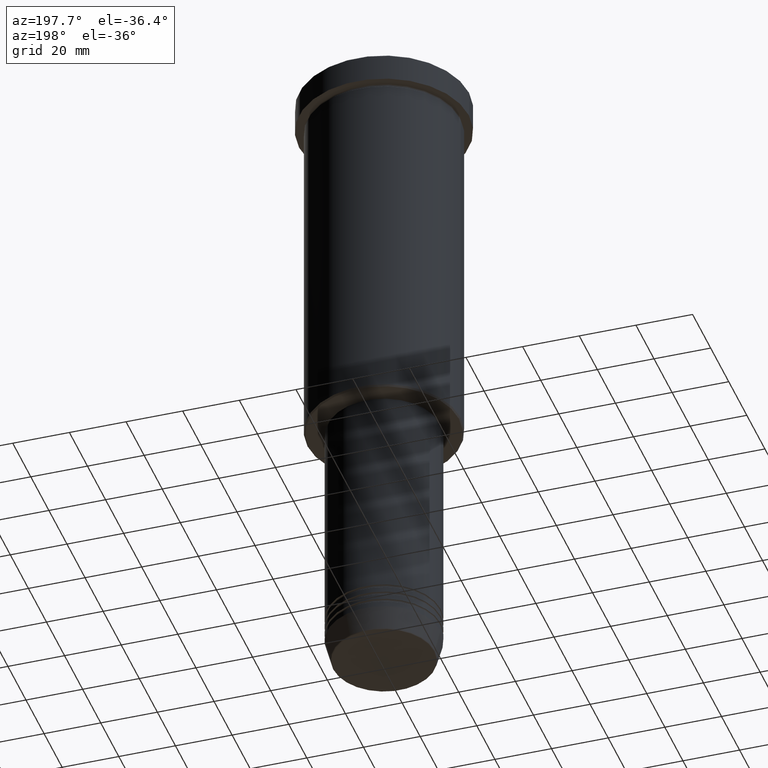
[diagram: clean part render]
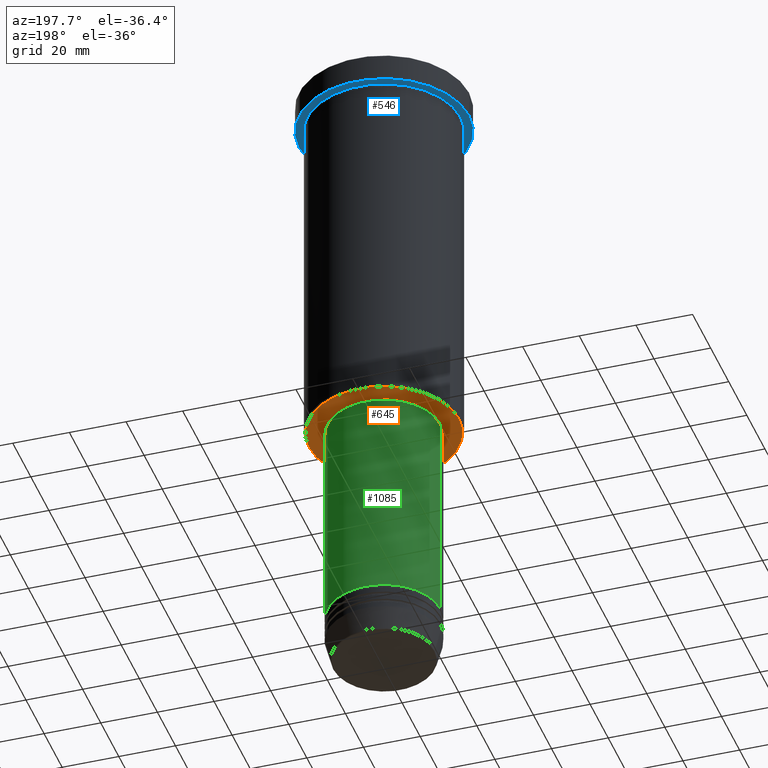
[diagram: same view with three faces highlighted in distinct colors, each labeled with its STEP entity id]
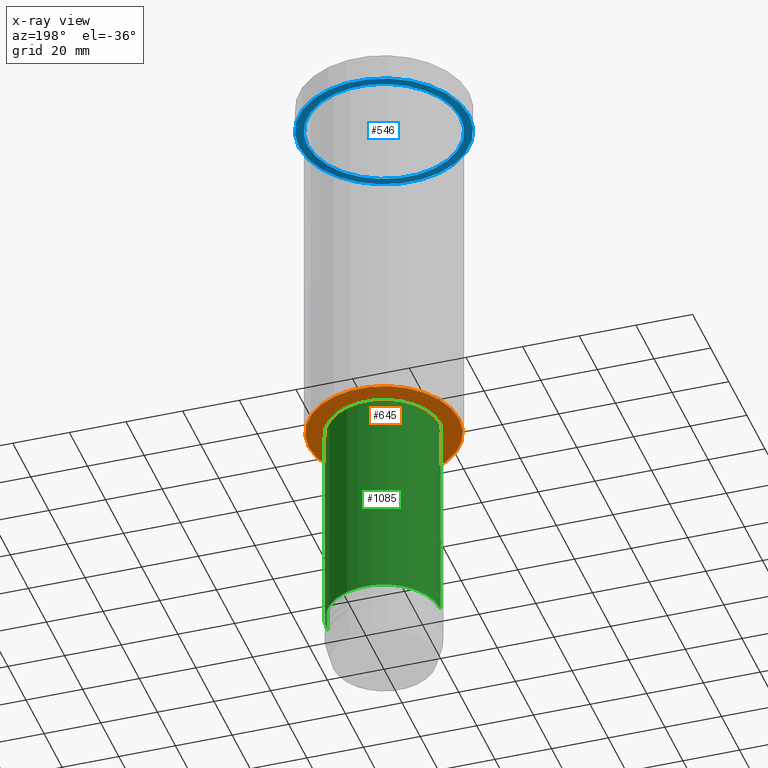
[diagram: x-ray of the same camera — body ghosted, the three highlighted faces saturated]
A machine part, auxiliary view with three faces highlighted in distinct colors.
The next image is the same camera in x-ray (body ghosted, the three faces saturated) — at least one of them is partly hidden behind the body in this view.
Their STEP definitions:

[orange] entity #645 — the highlighted planar face has unit normal (0, 0, -1).
#6 = CARTESIAN_POINT ( 'NONE',  ( -26.49999999999996803, 3.275930187719167974E-15, -136.0000000000000000 ) ) ;
#30 = EDGE_CURVE ( 'NONE', #602, #732, #653, .T. ) ;
#33 = CARTESIAN_POINT ( 'NONE',  ( 26.49999999999996803, 0.000000000000000000, -136.0000000000000000 ) ) ;
#59 = CARTESIAN_POINT ( 'NONE',  ( 0.000000000000000000, 0.000000000000000000, -136.0000000000000000 ) ) ;
#105 = CARTESIAN_POINT ( 'NONE',  ( 19.50000000000000000, 0.000000000000000000, -136.0000000000000000 ) ) ;
#113 = DIRECTION ( 'NONE',  ( -1.000000000000000000, 0.000000000000000000, -0.000000000000000000 ) ) ;
#132 = CARTESIAN_POINT ( 'NONE',  ( 0.000000000000000000, 0.000000000000000000, -136.0000000000000000 ) ) ;
#145 = AXIS2_PLACEMENT_3D ( 'NONE', #390, #1117, #570 ) ;
#165 = CARTESIAN_POINT ( 'NONE',  ( 0.000000000000000000, 0.000000000000000000, -136.0000000000000000 ) ) ;
#199 = FACE_BOUND ( 'NONE', #819, .T. ) ;
#221 = ORIENTED_EDGE ( 'NONE', *, *, #316, .T. ) ;
#238 = CIRCLE ( 'NONE', #481, 19.50000000000000000 ) ;
#254 = ORIENTED_EDGE ( 'NONE', *, *, #30, .T. ) ;
#262 = CIRCLE ( 'NONE', #710, 26.49999999999996803 ) ;
#316 = EDGE_CURVE ( 'NONE', #732, #602, #262, .T. ) ;
#349 = EDGE_CURVE ( 'NONE', #634, #563, #238, .T. ) ;
#390 = CARTESIAN_POINT ( 'NONE',  ( 0.000000000000000000, 0.000000000000000000, -136.0000000000000000 ) ) ;
#422 = DIRECTION ( 'NONE',  ( 1.000000000000000000, 0.000000000000000000, 0.000000000000000000 ) ) ;
#426 = AXIS2_PLACEMENT_3D ( 'NONE', #1000, #558, #113 ) ;
#463 = CARTESIAN_POINT ( 'NONE',  ( -19.50000000000000000, 2.388061258337338939E-15, -136.0000000000000000 ) ) ;
#481 = AXIS2_PLACEMENT_3D ( 'NONE', #59, #795, #422 ) ;
#482 = CIRCLE ( 'NONE', #145, 19.50000000000000000 ) ;
#489 = DIRECTION ( 'NONE',  ( 0.000000000000000000, 0.000000000000000000, -1.000000000000000000 ) ) ;
#528 = DIRECTION ( 'NONE',  ( 0.000000000000000000, 0.000000000000000000, -1.000000000000000000 ) ) ;
#558 = DIRECTION ( 'NONE',  ( 0.000000000000000000, 0.000000000000000000, -1.000000000000000000 ) ) ;
#563 = VERTEX_POINT ( 'NONE', #463 ) ;
#570 = DIRECTION ( 'NONE',  ( 1.000000000000000000, 0.000000000000000000, 0.000000000000000000 ) ) ;
#602 = VERTEX_POINT ( 'NONE', #6 ) ;
#634 = VERTEX_POINT ( 'NONE', #105 ) ;
#638 = PLANE ( 'NONE',  #426 ) ;
#645 = ADVANCED_FACE ( 'NONE', ( #648, #199 ), #638, .T. ) ;
#648 = FACE_OUTER_BOUND ( 'NONE', #963, .T. ) ;
#653 = CIRCLE ( 'NONE', #1093, 26.49999999999996803 ) ;
#709 = DIRECTION ( 'NONE',  ( -1.000000000000000000, 0.000000000000000000, 0.000000000000000000 ) ) ;
#710 = AXIS2_PLACEMENT_3D ( 'NONE', #132, #489, #770 ) ;
#732 = VERTEX_POINT ( 'NONE', #33 ) ;
#770 = DIRECTION ( 'NONE',  ( -1.000000000000000000, 0.000000000000000000, 0.000000000000000000 ) ) ;
#783 = ORIENTED_EDGE ( 'NONE', *, *, #835, .T. ) ;
#795 = DIRECTION ( 'NONE',  ( -0.000000000000000000, -0.000000000000000000, 1.000000000000000000 ) ) ;
#819 = EDGE_LOOP ( 'NONE', ( #873, #783 ) ) ;
#835 = EDGE_CURVE ( 'NONE', #563, #634, #482, .T. ) ;
#873 = ORIENTED_EDGE ( 'NONE', *, *, #349, .T. ) ;
#963 = EDGE_LOOP ( 'NONE', ( #221, #254 ) ) ;
#1000 = CARTESIAN_POINT ( 'NONE',  ( 0.000000000000000000, 27.00000000000000355, -136.0000000000000000 ) ) ;
#1093 = AXIS2_PLACEMENT_3D ( 'NONE', #165, #528, #709 ) ;
#1117 = DIRECTION ( 'NONE',  ( -0.000000000000000000, -0.000000000000000000, 1.000000000000000000 ) ) ;

[blue] entity #546 — the highlighted planar face has unit normal (0, 0, -1).
#2 = CARTESIAN_POINT ( 'NONE',  ( 0.000000000000000000, 30.00000000000000000, -9.999999999999992895 ) ) ;
#8 = CARTESIAN_POINT ( 'NONE',  ( 27.00000000000000355, 3.306546357697854128E-15, -9.999999999999992895 ) ) ;
#13 = DIRECTION ( 'NONE',  ( -0.000000000000000000, -0.000000000000000000, 1.000000000000000000 ) ) ;
#80 = DIRECTION ( 'NONE',  ( -1.000000000000000000, 0.000000000000000000, 0.000000000000000000 ) ) ;
#91 = CIRCLE ( 'NONE', #828, 30.00000000000000000 ) ;
#174 = VERTEX_POINT ( 'NONE', #8 ) ;
#196 = PLANE ( 'NONE',  #1129 ) ;
#241 = DIRECTION ( 'NONE',  ( 1.000000000000000000, 0.000000000000000000, 0.000000000000000000 ) ) ;
#320 = AXIS2_PLACEMENT_3D ( 'NONE', #925, #13, #820 ) ;
#339 = EDGE_LOOP ( 'NONE', ( #547, #340 ) ) ;
#340 = ORIENTED_EDGE ( 'NONE', *, *, #414, .T. ) ;
#414 = EDGE_CURVE ( 'NONE', #174, #769, #956, .T. ) ;
#434 = CARTESIAN_POINT ( 'NONE',  ( 0.000000000000000000, 0.000000000000000000, -9.999999999999992895 ) ) ;
#437 = EDGE_CURVE ( 'NONE', #919, #620, #446, .T. ) ;
#446 = CIRCLE ( 'NONE', #942, 30.00000000000000000 ) ;
#542 = FACE_OUTER_BOUND ( 'NONE', #793, .T. ) ;
#546 = ADVANCED_FACE ( 'NONE', ( #643, #542 ), #196, .T. ) ;
#547 = ORIENTED_EDGE ( 'NONE', *, *, #1043, .T. ) ;
#549 = CARTESIAN_POINT ( 'NONE',  ( 30.00000000000000000, 0.000000000000000000, -9.999999999999992895 ) ) ;
#553 = DIRECTION ( 'NONE',  ( -1.000000000000000000, 0.000000000000000000, -0.000000000000000000 ) ) ;
#594 = CIRCLE ( 'NONE', #320, 27.00000000000000355 ) ;
#620 = VERTEX_POINT ( 'NONE', #549 ) ;
#643 = FACE_BOUND ( 'NONE', #339, .T. ) ;
#698 = EDGE_CURVE ( 'NONE', #620, #919, #91, .T. ) ;
#740 = DIRECTION ( 'NONE',  ( 0.000000000000000000, 0.000000000000000000, -1.000000000000000000 ) ) ;
#747 = DIRECTION ( 'NONE',  ( 1.000000000000000000, 0.000000000000000000, 0.000000000000000000 ) ) ;
#759 = DIRECTION ( 'NONE',  ( -0.000000000000000000, -0.000000000000000000, 1.000000000000000000 ) ) ;
#769 = VERTEX_POINT ( 'NONE', #852 ) ;
#793 = EDGE_LOOP ( 'NONE', ( #801, #877 ) ) ;
#801 = ORIENTED_EDGE ( 'NONE', *, *, #698, .F. ) ;
#820 = DIRECTION ( 'NONE',  ( -1.000000000000000000, 0.000000000000000000, 0.000000000000000000 ) ) ;
#828 = AXIS2_PLACEMENT_3D ( 'NONE', #1039, #759, #747 ) ;
#852 = CARTESIAN_POINT ( 'NONE',  ( -27.00000000000000355, 0.000000000000000000, -9.999999999999992895 ) ) ;
#874 = CARTESIAN_POINT ( 'NONE',  ( -30.00000000000000000, 3.673940397442059178E-15, -9.999999999999992895 ) ) ;
#876 = DIRECTION ( 'NONE',  ( -0.000000000000000000, -0.000000000000000000, 1.000000000000000000 ) ) ;
#877 = ORIENTED_EDGE ( 'NONE', *, *, #437, .F. ) ;
#919 = VERTEX_POINT ( 'NONE', #874 ) ;
#925 = CARTESIAN_POINT ( 'NONE',  ( 0.000000000000000000, 0.000000000000000000, -9.999999999999992895 ) ) ;
#942 = AXIS2_PLACEMENT_3D ( 'NONE', #434, #876, #241 ) ;
#956 = CIRCLE ( 'NONE', #1149, 27.00000000000000355 ) ;
#1039 = CARTESIAN_POINT ( 'NONE',  ( 0.000000000000000000, 0.000000000000000000, -9.999999999999992895 ) ) ;
#1043 = EDGE_CURVE ( 'NONE', #769, #174, #594, .T. ) ;
#1063 = CARTESIAN_POINT ( 'NONE',  ( 0.000000000000000000, 0.000000000000000000, -9.999999999999992895 ) ) ;
#1129 = AXIS2_PLACEMENT_3D ( 'NONE', #2, #740, #553 ) ;
#1145 = DIRECTION ( 'NONE',  ( -0.000000000000000000, -0.000000000000000000, 1.000000000000000000 ) ) ;
#1149 = AXIS2_PLACEMENT_3D ( 'NONE', #1063, #1145, #80 ) ;

[green] entity #1085 — the highlighted cylindrical surface (partial cylindrical patch) has radius 20 mm, axis along (-0, -0, 1).
#104 = FACE_OUTER_BOUND ( 'NONE', #266, .T. ) ;
#122 = VERTEX_POINT ( 'NONE', #289 ) ;
#189 = LINE ( 'NONE', #917, #579 ) ;
#229 = VERTEX_POINT ( 'NONE', #306 ) ;
#266 = EDGE_LOOP ( 'NONE', ( #885, #609, #982, #678 ) ) ;
#289 = CARTESIAN_POINT ( 'NONE',  ( 20.00000000000000000, 0.000000000000000000, -213.9999999999999716 ) ) ;
#290 = DIRECTION ( 'NONE',  ( -0.000000000000000000, -0.000000000000000000, 1.000000000000000000 ) ) ;
#306 = CARTESIAN_POINT ( 'NONE',  ( -20.00000000000000000, 2.449293598294706513E-15, -213.9999999999999716 ) ) ;
#315 = CIRCLE ( 'NONE', #373, 20.00000000000000000 ) ;
#329 = VERTEX_POINT ( 'NONE', #755 ) ;
#335 = CIRCLE ( 'NONE', #998, 20.00000000000000000 ) ;
#337 = CARTESIAN_POINT ( 'NONE',  ( -20.00000000000000000, 2.449293598294706513E-15, 0.000000000000000000 ) ) ;
#363 = DIRECTION ( 'NONE',  ( 1.000000000000000000, 0.000000000000000000, 0.000000000000000000 ) ) ;
#373 = AXIS2_PLACEMENT_3D ( 'NONE', #686, #516, #1051 ) ;
#387 = EDGE_CURVE ( 'NONE', #229, #1137, #962, .T. ) ;
#485 = EDGE_CURVE ( 'NONE', #122, #229, #315, .T. ) ;
#516 = DIRECTION ( 'NONE',  ( -0.000000000000000000, -0.000000000000000000, 1.000000000000000000 ) ) ;
#562 = AXIS2_PLACEMENT_3D ( 'NONE', #739, #290, #363 ) ;
#564 = CARTESIAN_POINT ( 'NONE',  ( -20.00000000000000000, 2.449293598294706513E-15, -137.0000000000000000 ) ) ;
#579 = VECTOR ( 'NONE', #1099, 1000.000000000000000 ) ;
#609 = ORIENTED_EDGE ( 'NONE', *, *, #387, .T. ) ;
#636 = CYLINDRICAL_SURFACE ( 'NONE', #562, 20.00000000000000000 ) ;
#647 = EDGE_CURVE ( 'NONE', #122, #329, #189, .T. ) ;
#678 = ORIENTED_EDGE ( 'NONE', *, *, #647, .F. ) ;
#680 = DIRECTION ( 'NONE',  ( -0.000000000000000000, -0.000000000000000000, 1.000000000000000000 ) ) ;
#686 = CARTESIAN_POINT ( 'NONE',  ( 0.000000000000000000, 0.000000000000000000, -213.9999999999999716 ) ) ;
#739 = CARTESIAN_POINT ( 'NONE',  ( 0.000000000000000000, 0.000000000000000000, 0.000000000000000000 ) ) ;
#755 = CARTESIAN_POINT ( 'NONE',  ( 20.00000000000000000, 0.000000000000000000, -137.0000000000000000 ) ) ;
#823 = EDGE_CURVE ( 'NONE', #329, #1137, #335, .T. ) ;
#885 = ORIENTED_EDGE ( 'NONE', *, *, #485, .T. ) ;
#917 = CARTESIAN_POINT ( 'NONE',  ( 20.00000000000000000, 0.000000000000000000, 0.000000000000000000 ) ) ;
#951 = CARTESIAN_POINT ( 'NONE',  ( 0.000000000000000000, 0.000000000000000000, -137.0000000000000000 ) ) ;
#962 = LINE ( 'NONE', #337, #1050 ) ;
#969 = DIRECTION ( 'NONE',  ( -0.000000000000000000, -0.000000000000000000, 1.000000000000000000 ) ) ;
#982 = ORIENTED_EDGE ( 'NONE', *, *, #823, .F. ) ;
#998 = AXIS2_PLACEMENT_3D ( 'NONE', #951, #680, #1042 ) ;
#1042 = DIRECTION ( 'NONE',  ( 1.000000000000000000, 0.000000000000000000, 0.000000000000000000 ) ) ;
#1050 = VECTOR ( 'NONE', #969, 1000.000000000000000 ) ;
#1051 = DIRECTION ( 'NONE',  ( 1.000000000000000000, 0.000000000000000000, 0.000000000000000000 ) ) ;
#1085 = ADVANCED_FACE ( 'NONE', ( #104 ), #636, .T. ) ;
#1099 = DIRECTION ( 'NONE',  ( -0.000000000000000000, -0.000000000000000000, 1.000000000000000000 ) ) ;
#1137 = VERTEX_POINT ( 'NONE', #564 ) ;